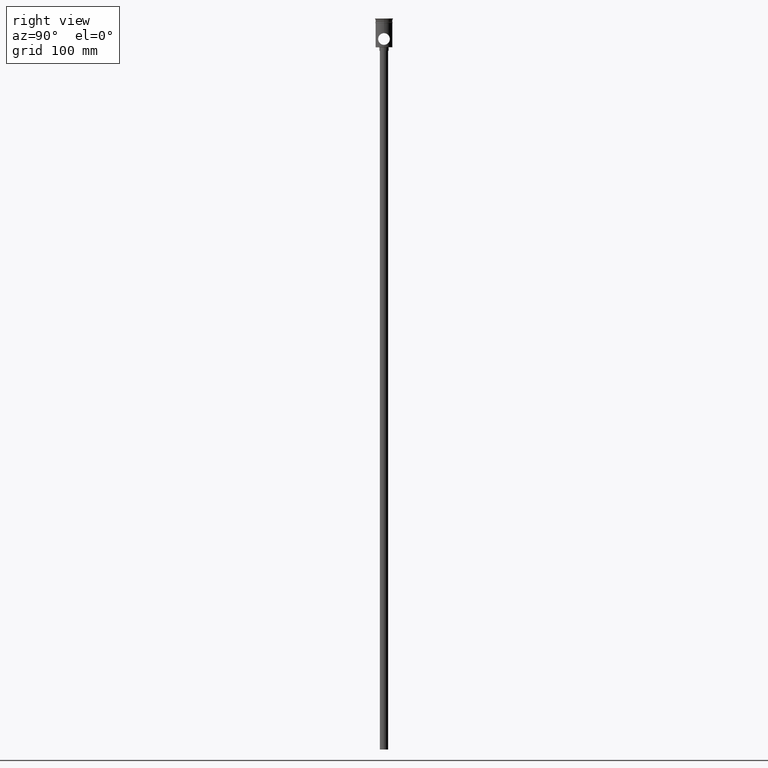
[diagram: clean part render]
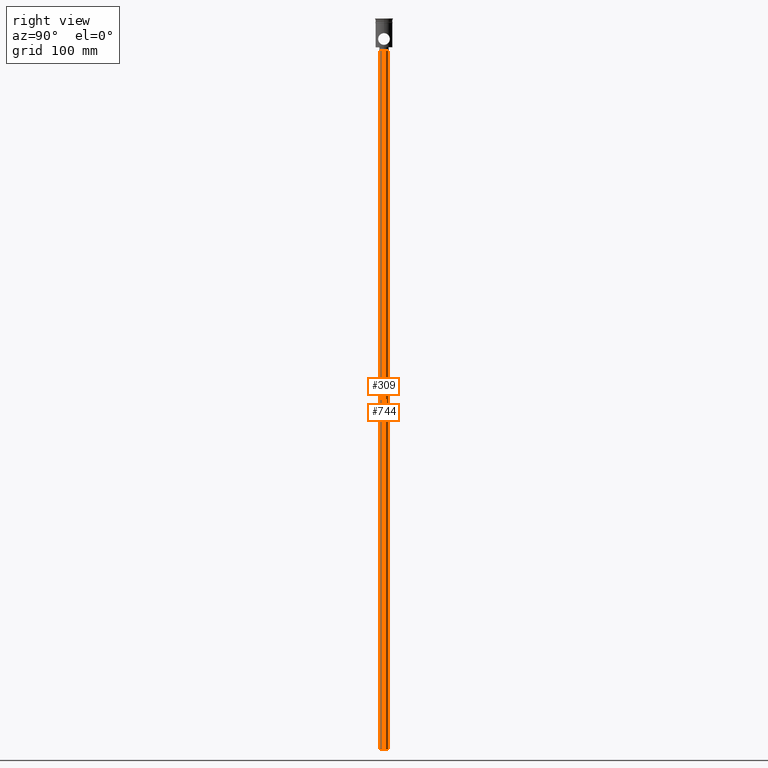
[diagram: same view with one multi-face feature highlighted, each face labeled with its STEP entity id]
A machine part, right view. The highlighted faces form ONE feature: a constant-radius fillet chain: 2 tangent blend faces with common blend radius 3.5 mm. The faces share edges in the B-rep.
Their STEP definitions:
[1] entity #744 (Cylinder):
#22 = CIRCLE ( 'NONE', #1167, 3.500000000000000444 ) ;
#98 = CARTESIAN_POINT ( 'NONE',  ( 3.500000000000000444, 0.000000000000000000, -624.5000000000000000 ) ) ;
#121 = CARTESIAN_POINT ( 'NONE',  ( 3.500000000000000444, 0.000000000000000000, -27.50000000000000000 ) ) ;
#122 = LINE ( 'NONE', #258, #228 ) ;
#204 = FACE_OUTER_BOUND ( 'NONE', #296, .T. ) ;
#228 = VECTOR ( 'NONE', #1061, 1000.000000000000000 ) ;
#231 = LINE ( 'NONE', #1131, #1009 ) ;
#241 = CARTESIAN_POINT ( 'NONE',  ( 0.000000000000000000, 0.000000000000000000, -27.50000000000000000 ) ) ;
#258 = CARTESIAN_POINT ( 'NONE',  ( -3.500000000000000444, 4.286263797015737088E-16, -624.5000000000000000 ) ) ;
#296 = EDGE_LOOP ( 'NONE', ( #921, #969, #729, #1393 ) ) ;
#342 = VERTEX_POINT ( 'NONE', #878 ) ;
#362 = EDGE_CURVE ( 'NONE', #683, #374, #22, .T. ) ;
#374 = VERTEX_POINT ( 'NONE', #98 ) ;
#388 = CYLINDRICAL_SURFACE ( 'NONE', #610, 3.500000000000000444 ) ;
#423 = EDGE_CURVE ( 'NONE', #374, #812, #231, .T. ) ;
#448 = DIRECTION ( 'NONE',  ( 0.000000000000000000, 0.000000000000000000, -1.000000000000000000 ) ) ;
#453 = CARTESIAN_POINT ( 'NONE',  ( 0.000000000000000000, 0.000000000000000000, -624.5000000000000000 ) ) ;
#488 = EDGE_CURVE ( 'NONE', #683, #342, #122, .T. ) ;
#557 = DIRECTION ( 'NONE',  ( -0.000000000000000000, -0.000000000000000000, 1.000000000000000000 ) ) ;
#610 = AXIS2_PLACEMENT_3D ( 'NONE', #1191, #661, #1129 ) ;
#654 = DIRECTION ( 'NONE',  ( -1.000000000000000000, 0.000000000000000000, 0.000000000000000000 ) ) ;
#661 = DIRECTION ( 'NONE',  ( -0.000000000000000000, -0.000000000000000000, 1.000000000000000000 ) ) ;
#681 = DIRECTION ( 'NONE',  ( -1.000000000000000000, 0.000000000000000000, 0.000000000000000000 ) ) ;
#683 = VERTEX_POINT ( 'NONE', #1024 ) ;
#729 = ORIENTED_EDGE ( 'NONE', *, *, #1290, .T. ) ;
#744 = ADVANCED_FACE ( 'NONE', ( #204 ), #388, .T. ) ;
#807 = CIRCLE ( 'NONE', #1311, 3.500000000000000444 ) ;
#812 = VERTEX_POINT ( 'NONE', #121 ) ;
#878 = CARTESIAN_POINT ( 'NONE',  ( -3.500000000000000444, 4.286263797015737088E-16, -27.50000000000000000 ) ) ;
#899 = DIRECTION ( 'NONE',  ( 0.000000000000000000, 0.000000000000000000, -1.000000000000000000 ) ) ;
#921 = ORIENTED_EDGE ( 'NONE', *, *, #362, .F. ) ;
#969 = ORIENTED_EDGE ( 'NONE', *, *, #488, .T. ) ;
#1009 = VECTOR ( 'NONE', #557, 1000.000000000000000 ) ;
#1024 = CARTESIAN_POINT ( 'NONE',  ( -3.500000000000000444, 4.286263797015737088E-16, -624.5000000000000000 ) ) ;
#1061 = DIRECTION ( 'NONE',  ( -0.000000000000000000, -0.000000000000000000, 1.000000000000000000 ) ) ;
#1129 = DIRECTION ( 'NONE',  ( 1.000000000000000000, 0.000000000000000000, 0.000000000000000000 ) ) ;
#1131 = CARTESIAN_POINT ( 'NONE',  ( 3.500000000000000444, 0.000000000000000000, -624.5000000000000000 ) ) ;
#1167 = AXIS2_PLACEMENT_3D ( 'NONE', #453, #899, #654 ) ;
#1191 = CARTESIAN_POINT ( 'NONE',  ( 0.000000000000000000, 0.000000000000000000, -624.5000000000000000 ) ) ;
#1290 = EDGE_CURVE ( 'NONE', #342, #812, #807, .T. ) ;
#1311 = AXIS2_PLACEMENT_3D ( 'NONE', #241, #448, #681 ) ;
#1393 = ORIENTED_EDGE ( 'NONE', *, *, #423, .F. ) ;
[2] entity #309 (Cylinder):
#98 = CARTESIAN_POINT ( 'NONE',  ( 3.500000000000000444, 0.000000000000000000, -624.5000000000000000 ) ) ;
#106 = EDGE_LOOP ( 'NONE', ( #617, #619, #768, #752 ) ) ;
#108 = EDGE_CURVE ( 'NONE', #812, #342, #1185, .T. ) ;
#121 = CARTESIAN_POINT ( 'NONE',  ( 3.500000000000000444, 0.000000000000000000, -27.50000000000000000 ) ) ;
#122 = LINE ( 'NONE', #258, #228 ) ;
#160 = CARTESIAN_POINT ( 'NONE',  ( 0.000000000000000000, 0.000000000000000000, -624.5000000000000000 ) ) ;
#212 = DIRECTION ( 'NONE',  ( -1.000000000000000000, 0.000000000000000000, 0.000000000000000000 ) ) ;
#228 = VECTOR ( 'NONE', #1061, 1000.000000000000000 ) ;
#231 = LINE ( 'NONE', #1131, #1009 ) ;
#258 = CARTESIAN_POINT ( 'NONE',  ( -3.500000000000000444, 4.286263797015737088E-16, -624.5000000000000000 ) ) ;
#272 = CIRCLE ( 'NONE', #1388, 3.500000000000000444 ) ;
#297 = CYLINDRICAL_SURFACE ( 'NONE', #702, 3.500000000000000444 ) ;
#309 = ADVANCED_FACE ( 'NONE', ( #870 ), #297, .T. ) ;
#342 = VERTEX_POINT ( 'NONE', #878 ) ;
#374 = VERTEX_POINT ( 'NONE', #98 ) ;
#423 = EDGE_CURVE ( 'NONE', #374, #812, #231, .T. ) ;
#488 = EDGE_CURVE ( 'NONE', #683, #342, #122, .T. ) ;
#539 = AXIS2_PLACEMENT_3D ( 'NONE', #1475, #904, #563 ) ;
#557 = DIRECTION ( 'NONE',  ( -0.000000000000000000, -0.000000000000000000, 1.000000000000000000 ) ) ;
#563 = DIRECTION ( 'NONE',  ( -1.000000000000000000, 0.000000000000000000, 0.000000000000000000 ) ) ;
#617 = ORIENTED_EDGE ( 'NONE', *, *, #488, .F. ) ;
#618 = DIRECTION ( 'NONE',  ( 0.000000000000000000, 0.000000000000000000, -1.000000000000000000 ) ) ;
#619 = ORIENTED_EDGE ( 'NONE', *, *, #647, .F. ) ;
#647 = EDGE_CURVE ( 'NONE', #374, #683, #272, .T. ) ;
#683 = VERTEX_POINT ( 'NONE', #1024 ) ;
#702 = AXIS2_PLACEMENT_3D ( 'NONE', #160, #848, #1322 ) ;
#752 = ORIENTED_EDGE ( 'NONE', *, *, #108, .T. ) ;
#768 = ORIENTED_EDGE ( 'NONE', *, *, #423, .T. ) ;
#812 = VERTEX_POINT ( 'NONE', #121 ) ;
#848 = DIRECTION ( 'NONE',  ( -0.000000000000000000, -0.000000000000000000, 1.000000000000000000 ) ) ;
#870 = FACE_OUTER_BOUND ( 'NONE', #106, .T. ) ;
#878 = CARTESIAN_POINT ( 'NONE',  ( -3.500000000000000444, 4.286263797015737088E-16, -27.50000000000000000 ) ) ;
#888 = CARTESIAN_POINT ( 'NONE',  ( 0.000000000000000000, 0.000000000000000000, -624.5000000000000000 ) ) ;
#904 = DIRECTION ( 'NONE',  ( 0.000000000000000000, 0.000000000000000000, -1.000000000000000000 ) ) ;
#1009 = VECTOR ( 'NONE', #557, 1000.000000000000000 ) ;
#1024 = CARTESIAN_POINT ( 'NONE',  ( -3.500000000000000444, 4.286263797015737088E-16, -624.5000000000000000 ) ) ;
#1061 = DIRECTION ( 'NONE',  ( -0.000000000000000000, -0.000000000000000000, 1.000000000000000000 ) ) ;
#1131 = CARTESIAN_POINT ( 'NONE',  ( 3.500000000000000444, 0.000000000000000000, -624.5000000000000000 ) ) ;
#1185 = CIRCLE ( 'NONE', #539, 3.500000000000000444 ) ;
#1322 = DIRECTION ( 'NONE',  ( 1.000000000000000000, 0.000000000000000000, 0.000000000000000000 ) ) ;
#1388 = AXIS2_PLACEMENT_3D ( 'NONE', #888, #618, #212 ) ;
#1475 = CARTESIAN_POINT ( 'NONE',  ( 0.000000000000000000, 0.000000000000000000, -27.50000000000000000 ) ) ;